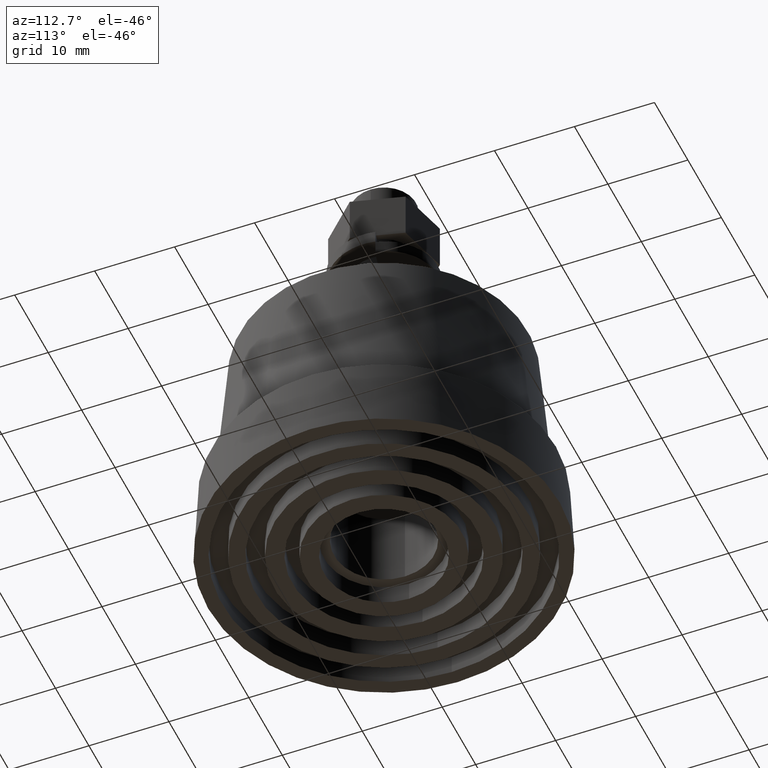
[diagram: clean part render]
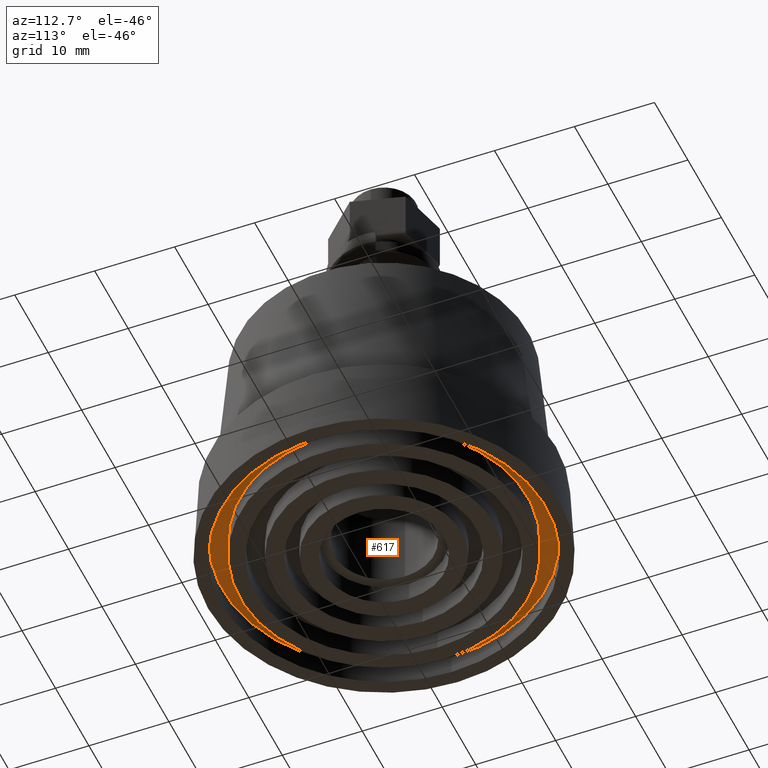
[diagram: same view with one face highlighted and labeled with its STEP entity id]
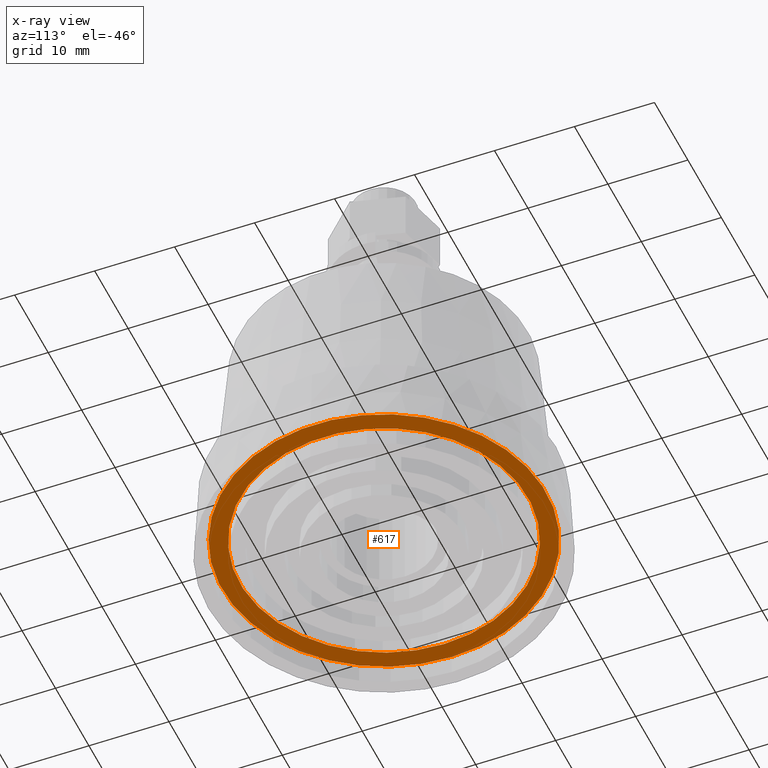
[diagram: x-ray of the same camera — body ghosted, the highlighted face saturated]
A machine part, auxiliary view. The second image highlights one B-rep face of the part: STEP entity #617.
The next image is the same camera in x-ray: the body ghosted, the highlighted face saturated — about 0% of this face is hidden behind the body in this view.
In plain terms, the highlighted planar face has unit normal (0, 0, 1).
Its self-contained STEP definition (entity closure, byte-faithful):
#104=PLANE('',#686);
#136=FACE_BOUND('',#237,.T.);
#174=FACE_OUTER_BOUND('',#236,.T.);
#236=EDGE_LOOP('',(#480));
#237=EDGE_LOOP('',(#481));
#311=CIRCLE('',#687,20.25);
#312=CIRCLE('',#688,18.);
#347=VERTEX_POINT('',#1001);
#348=VERTEX_POINT('',#1003);
#403=EDGE_CURVE('',#347,#347,#311,.T.);
#404=EDGE_CURVE('',#348,#348,#312,.T.);
#480=ORIENTED_EDGE('',*,*,#403,.F.);
#481=ORIENTED_EDGE('',*,*,#404,.F.);
#617=ADVANCED_FACE('',(#174,#136),#104,.F.);
#686=AXIS2_PLACEMENT_3D('',#1000,#807,#808);
#687=AXIS2_PLACEMENT_3D('',#1002,#809,#810);
#688=AXIS2_PLACEMENT_3D('',#1004,#811,#812);
#807=DIRECTION('center_axis',(0.,0.,1.));
#808=DIRECTION('ref_axis',(1.,0.,0.));
#809=DIRECTION('center_axis',(0.,0.,1.));
#810=DIRECTION('ref_axis',(1.,0.,0.));
#811=DIRECTION('center_axis',(0.,0.,-1.));
#812=DIRECTION('ref_axis',(1.,0.,0.));
#1000=CARTESIAN_POINT('Origin',(0.,0.,2.5));
#1001=CARTESIAN_POINT('',(-20.25,-2.47990976827339E-15,2.5));
#1002=CARTESIAN_POINT('Origin',(0.,0.,2.5));
#1003=CARTESIAN_POINT('',(-18.,2.20436423846524E-15,2.5));
#1004=CARTESIAN_POINT('Origin',(0.,0.,2.5));